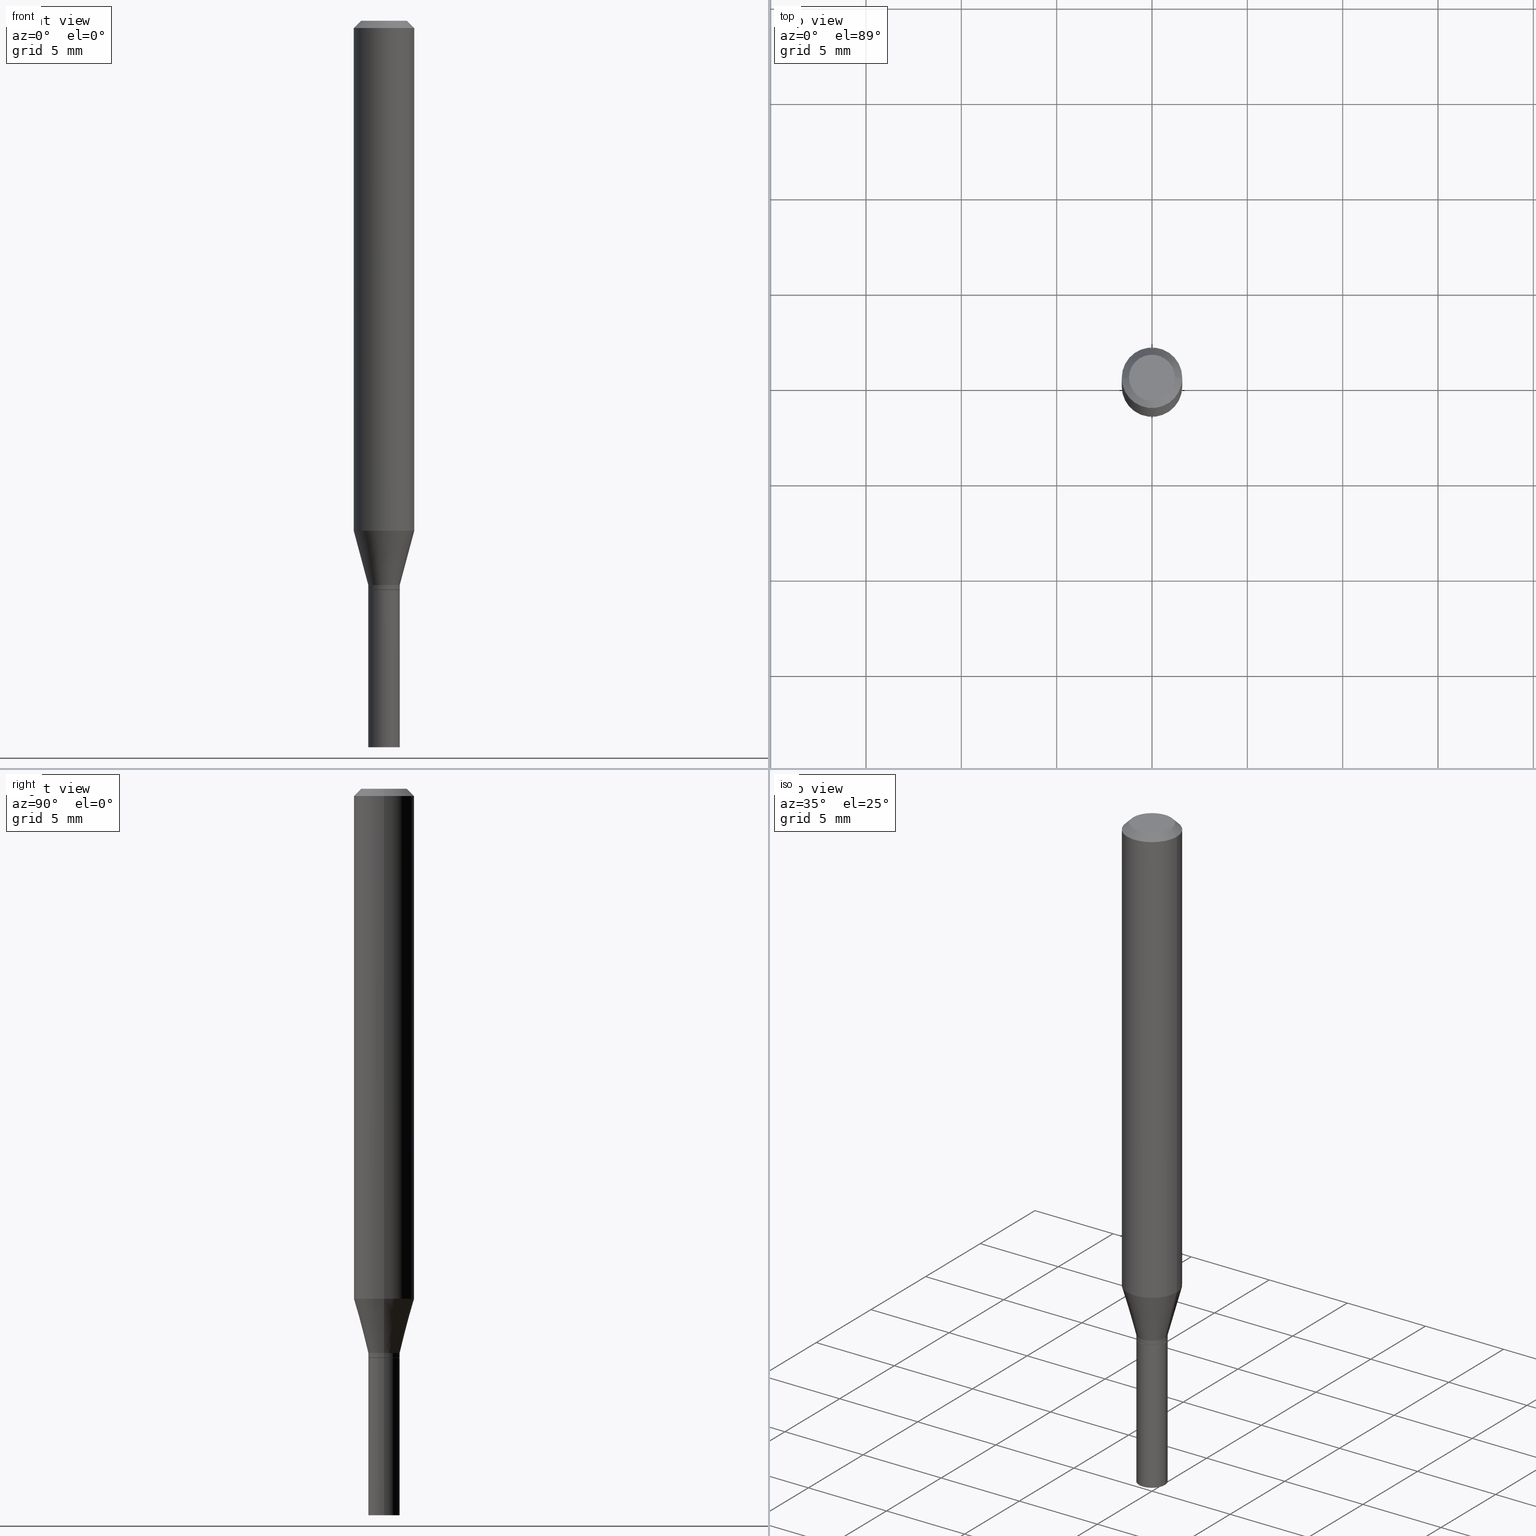
[diagram: canonical four-view strip — front | top / right | iso, engineering-drawing reading convention]
A machine part, canonical four-view strip (front | top / right | iso — engineering-drawing reading convention). The complete STEP part file that produces these views, byte-faithful:
ISO-10303-21;
HEADER;
FILE_DESCRIPTION (( 'STEP AP203' ),
    '1' );
FILE_NAME ('02654.STEP',
    '2024-03-18T21:07:15',
    ( '' ),
    ( '' ),
    'SwSTEP 2.0',
    'SolidWorks 2023',
    '' );
FILE_SCHEMA (( 'CONFIG_CONTROL_DESIGN' ));
ENDSEC;

DATA;
#1 = PERSON ( 'UNSPECIFIED', 'UNSPECIFIED', 'UNSPECIFIED', ('UNSPECIFIED'), ('UNSPECIFIED'), ('UNSPECIFIED') ) ;
#2 = DIRECTION ( 'NONE',  ( -2.445468806185136597E-29, 3.491481338843145583E-15, 1.000000000000000000 ) ) ;
#3 = ORIENTED_EDGE ( 'NONE', *, *, #357, .F. ) ;
#4 = DIRECTION ( 'NONE',  ( 0.000000000000000000, 0.000000000000000000, 1.000000000000000000 ) ) ;
#5 = AXIS2_PLACEMENT_3D ( 'NONE', #285, #216, #103 ) ;
#6 = AXIS2_PLACEMENT_3D ( 'NONE', #327, #465, #421 ) ;
#7 = ORIENTED_EDGE ( 'NONE', *, *, #114, .T. ) ;
#8 = MECHANICAL_CONTEXT ( 'NONE', #349, 'mechanical' ) ;
#9 = DIRECTION ( 'NONE',  ( -2.445468806185136597E-29, 3.491481338843145583E-15, 1.000000000000000000 ) ) ;
#10 = ORIENTED_EDGE ( 'NONE', *, *, #178, .F. ) ;
#11 = DATE_AND_TIME ( #18, #218 ) ;
#12 = AXIS2_PLACEMENT_3D ( 'NONE', #350, #271, #385 ) ;
#13 = DIRECTION ( 'NONE',  ( 1.000000000000000000, -6.982962677686266711E-15, 0.000000000000000000 ) ) ;
#14 = DESIGN_CONTEXT ( 'detailed design', #48, 'design' ) ;
#15 = DATE_AND_TIME ( #273, #427 ) ;
#16 = DIRECTION ( 'NONE',  ( 1.000000000000000000, -6.982962677686270655E-15, 0.000000000000000000 ) ) ;
#17 = ADVANCED_FACE ( 'NONE', ( #409 ), #440, .T. ) ;
#18 = CALENDAR_DATE ( 2024, 18, 3 ) ;
#19 = CARTESIAN_POINT ( 'NONE',  ( 3.576687321579069994E-29, -5.368277968210015545E-15, -1.500000000000000222 ) ) ;
#20 = CYLINDRICAL_SURFACE ( 'NONE', #62, 0.03250000000000000111 ) ;
#21 = VECTOR ( 'NONE', #30, 39.37007874015748854 ) ;
#22 = AXIS2_PLACEMENT_3D ( 'NONE', #232, #59, #197 ) ;
#23 = PLANE ( 'NONE',  #22 ) ;
#24 = DIRECTION ( 'NONE',  ( 1.000000000000000000, -6.982962677686265922E-15, 4.876176775795935232E-29 ) ) ;
#25 = FACE_OUTER_BOUND ( 'NONE', #407, .T. ) ;
#26 = EDGE_CURVE ( 'NONE', #140, #40, #233, .T. ) ;
#27 = CONICAL_SURFACE ( 'NONE', #333, 0.03200000000000000067, 0.7853981633972005882 ) ;
#28 = PLANE ( 'NONE',  #275 ) ;
#29 = ORIENTED_EDGE ( 'NONE', *, *, #454, .F. ) ;
#30 = DIRECTION ( 'NONE',  ( -0.7071067811865416886, 2.468850131082196713E-15, -0.7071067811865531239 ) ) ;
#31 = EDGE_CURVE ( 'NONE', #38, #183, #348, .T. ) ;
#32 = DIRECTION ( 'NONE',  ( 1.000000000000000000, -6.982962677686266711E-15, 4.876176775795935793E-29 ) ) ;
#33 = EDGE_LOOP ( 'NONE', ( #340, #401 ) ) ;
#34 = AXIS2_PLACEMENT_3D ( 'NONE', #150, #113, #264 ) ;
#35 = CARTESIAN_POINT ( 'NONE',  ( 0.03250000000000000111, -5.464168295289522318E-15, -1.500000000000000222 ) ) ;
#36 = ORIENTED_EDGE ( 'NONE', *, *, #357, .T. ) ;
#37 = CARTESIAN_POINT ( 'NONE',  ( -0.03250000000000000111, 2.309263891220325683E-16, -1.598653904332844407E-30 ) ) ;
#38 = VERTEX_POINT ( 'NONE', #107 ) ;
#39 = LINE ( 'NONE', #146, #128 ) ;
#40 = VERTEX_POINT ( 'NONE', #187 ) ;
#41 = EDGE_CURVE ( 'NONE', #399, #85, #452, .T. ) ;
#42 = CARTESIAN_POINT ( 'NONE',  ( 2.873425847267536398E-29, -4.102490573140697470E-15, -1.175000000000000266 ) ) ;
#43 = VECTOR ( 'NONE', #88, 39.37007874015748143 ) ;
#44 = APPROVAL_PERSON_ORGANIZATION ( #122, #375, #51 ) ;
#45 = ORIENTED_EDGE ( 'NONE', *, *, #230, .T. ) ;
#46 =( NAMED_UNIT ( * ) PLANE_ANGLE_UNIT ( ) SI_UNIT ( $, .RADIAN. ) );
#47 = EDGE_LOOP ( 'NONE', ( #79, #267, #292, #137 ) ) ;
#48 = APPLICATION_CONTEXT ( 'configuration controlled 3d designs of mechanical parts and assemblies' ) ;
#49 = EDGE_CURVE ( 'NONE', #179, #308, #289, .T. ) ;
#50 = ORIENTED_EDGE ( 'NONE', *, *, #111, .T. ) ;
#51 = APPROVAL_ROLE ( '' ) ;
#52 = CIRCLE ( 'NONE', #156, 0.03250000000000018846 ) ;
#53 = LINE ( 'NONE', #195, #406 ) ;
#54 = PRODUCT ( '02654', '02654', '', ( #8 ) ) ;
#55 = ORGANIZATION ( 'UNSPECIFIED', 'UNSPECIFIED', '' ) ;
#56 = COORDINATED_UNIVERSAL_TIME_OFFSET ( 5, 0, .BEHIND. ) ;
#57 = CARTESIAN_POINT ( 'NONE',  ( -0.03250000000000000111, -4.438929901580675847E-15, -1.175000000000000266 ) ) ;
#58 = CALENDAR_DATE ( 2024, 18, 3 ) ;
#59 = DIRECTION ( 'NONE',  ( -2.438088387897960049E-29, 3.491481338843145188E-15, 1.000000000000000000 ) ) ;
#60 = EDGE_CURVE ( 'NONE', #295, #221, #363, .T. ) ;
#61 = DIRECTION ( 'NONE',  ( 1.000000000000000000, -6.982962677686271444E-15, 0.000000000000000000 ) ) ;
#62 = AXIS2_PLACEMENT_3D ( 'NONE', #199, #161, #24 ) ;
#63 = DIRECTION ( 'NONE',  ( 1.000000000000000000, -6.982962677686265922E-15, 4.876176775795935793E-29 ) ) ;
#64 = DIRECTION ( 'NONE',  ( 2.445468806185136597E-29, -3.491481338843145583E-15, -1.000000000000000000 ) ) ;
#65 = EDGE_LOOP ( 'NONE', ( #438, #110, #261, #361 ) ) ;
#66 = DIRECTION ( 'NONE',  ( -1.000000000000000000, 6.982962677686266711E-15, 0.000000000000000000 ) ) ;
#67 = CC_DESIGN_DATE_AND_TIME_ASSIGNMENT ( #198, #343, ( #158 ) ) ;
#68 = ORIENTED_EDGE ( 'NONE', *, *, #284, .T. ) ;
#69 = CIRCLE ( 'NONE', #445, 0.06250000000000000000 ) ;
#70 = CC_DESIGN_APPROVAL ( #224, ( #209 ) ) ;
#71 = CYLINDRICAL_SURFACE ( 'NONE', #387, 0.06250000000000000000 ) ;
#72 = CARTESIAN_POINT ( 'NONE',  ( -0.06250000000000000000, -3.232574977394969361E-15, -1.053038475772934746 ) ) ;
#73 = ORIENTED_EDGE ( 'NONE', *, *, #454, .T. ) ;
#74 = CC_DESIGN_PERSON_AND_ORGANIZATION_ASSIGNMENT ( #237, #162, ( #158 ) ) ;
#75 = CARTESIAN_POINT ( 'NONE',  ( 2.575172744215455039E-29, -3.676664187245031977E-15, -1.053038475772934746 ) ) ;
#76 = AXIS2_PLACEMENT_3D ( 'NONE', #243, #288, #422 ) ;
#77 = CYLINDRICAL_SURFACE ( 'NONE', #453, 0.03250000000000005662 ) ;
#78 = DIRECTION ( 'NONE',  ( 1.000000000000000000, -6.982962677686261977E-15, 0.000000000000000000 ) ) ;
#79 = ORIENTED_EDGE ( 'NONE', *, *, #41, .T. ) ;
#80 = APPROVAL_STATUS ( 'not_yet_approved' ) ;
#81 = CARTESIAN_POINT ( 'NONE',  ( 3.668203209277705088E-31, -5.237222008264718399E-17, -0.01499999999999999944 ) ) ;
#82 = AXIS2_PLACEMENT_3D ( 'NONE', #92, #238, #123 ) ;
#83 = DIRECTION ( 'NONE',  ( 1.000000000000000000, -6.982962677686259611E-15, 0.000000000000000000 ) ) ;
#84 = APPROVAL_PERSON_ORGANIZATION ( #124, #224, #120 ) ;
#85 = VERTEX_POINT ( 'NONE', #239 ) ;
#86 = ORIENTED_EDGE ( 'NONE', *, *, #382, .T. ) ;
#87 = APPROVAL_STATUS ( 'not_yet_approved' ) ;
#88 = DIRECTION ( 'NONE',  ( -2.445468806185136877E-29, 3.491481338843145188E-15, 1.000000000000000000 ) ) ;
#89 = LINE ( 'NONE', #204, #305 ) ;
#90 = AXIS2_PLACEMENT_3D ( 'NONE', #42, #337, #226 ) ;
#91 = APPROVAL_DATE_TIME ( #234, #457 ) ;
#92 = CARTESIAN_POINT ( 'NONE',  ( 2.269462870248323432E-16, 0.03249999999999590022, -1.175000000000000266 ) ) ;
#93 = EDGE_CURVE ( 'NONE', #330, #248, #53, .T. ) ;
#94 = DIRECTION ( 'NONE',  ( 1.000000000000000000, -6.982962677686265922E-15, 4.876176775795935232E-29 ) ) ;
#95 = PLANE ( 'NONE',  #82 ) ;
#96 = CARTESIAN_POINT ( 'NONE',  ( 3.668203209277704895E-29, -5.237222008264718177E-15, -1.500000000000000222 ) ) ;
#97 = EDGE_CURVE ( 'NONE', #221, #152, #130, .T. ) ;
#98 = DIRECTION ( 'NONE',  ( 1.000000000000000000, -6.982962677686258033E-15, 0.000000000000000000 ) ) ;
#99 = FACE_OUTER_BOUND ( 'NONE', #65, .T. ) ;
#100 = ADVANCED_FACE ( 'NONE', ( #344 ), #372, .T. ) ;
#101 = ORIENTED_EDGE ( 'NONE', *, *, #212, .F. ) ;
#102 = AXIS2_PLACEMENT_3D ( 'NONE', #411, #163, #16 ) ;
#103 = DIRECTION ( 'NONE',  ( 1.000000000000000000, -6.982962677686261977E-15, 0.000000000000000000 ) ) ;
#104 = DIRECTION ( 'NONE',  ( -2.445468806185136597E-29, 3.491481338843145583E-15, 1.000000000000000000 ) ) ;
#105 = ORIENTED_EDGE ( 'NONE', *, *, #60, .T. ) ;
#106 = FACE_OUTER_BOUND ( 'NONE', #429, .T. ) ;
#107 = CARTESIAN_POINT ( 'NONE',  ( 0.06250000000000000000, -4.888073874380388472E-16, -0.01499999999999999944 ) ) ;
#108 = VECTOR ( 'NONE', #430, 39.37007874015748143 ) ;
#109 = CARTESIAN_POINT ( 'NONE',  ( 0.000000000000000000, 0.000000000000000000, 0.000000000000000000 ) ) ;
#110 = ORIENTED_EDGE ( 'NONE', *, *, #303, .T. ) ;
#111 = EDGE_CURVE ( 'NONE', #308, #183, #89, .T. ) ;
#112 = PERSON_AND_ORGANIZATION ( #1, #55 ) ;
#113 = DIRECTION ( 'NONE',  ( -2.445468806185136597E-29, 3.491481338843145583E-15, 1.000000000000000000 ) ) ;
#114 = EDGE_CURVE ( 'NONE', #374, #399, #169, .T. ) ;
#115 = VERTEX_POINT ( 'NONE', #57 ) ;
#116 = AXIS2_PLACEMENT_3D ( 'NONE', #283, #206, #324 ) ;
#117 = DIRECTION ( 'NONE',  ( 0.2588190451025216277, 1.565188264969619995E-15, 0.9659258262890679791 ) ) ;
#118 = LOCAL_TIME ( 17, 7, 15.00000000000000000, #449 ) ;
#119 = ORIENTED_EDGE ( 'NONE', *, *, #268, .F. ) ;
#120 = APPROVAL_ROLE ( '' ) ;
#121 = DIRECTION ( 'NONE',  ( -2.445468806185136597E-29, 3.491481338843145583E-15, 1.000000000000000000 ) ) ;
#122 = PERSON_AND_ORGANIZATION ( #1, #55 ) ;
#123 = DIRECTION ( 'NONE',  ( -1.000000000000000000, 6.982962677686265922E-15, -4.876176775795935793E-29 ) ) ;
#124 = PERSON_AND_ORGANIZATION ( #1, #55 ) ;
#125 = CONICAL_SURFACE ( 'NONE', #5, 0.03250000000000018846, 0.2617993877991502960 ) ;
#126 = FACE_OUTER_BOUND ( 'NONE', #446, .T. ) ;
#127 = ADVANCED_FACE ( 'NONE', ( #279 ), #23, .F. ) ;
#128 = VECTOR ( 'NONE', #444, 39.37007874015748854 ) ;
#129 = CARTESIAN_POINT ( 'NONE',  ( 0.000000000000000000, 0.000000000000000000, 0.000000000000000000 ) ) ;
#130 = LINE ( 'NONE', #346, #225 ) ;
#131 = DIRECTION ( 'NONE',  ( 1.000000000000000000, -6.982962677686258033E-15, 0.000000000000000000 ) ) ;
#132 = CIRCLE ( 'NONE', #184, 0.03250000000000000111 ) ;
#133 = ADVANCED_FACE ( 'NONE', ( #280 ), #352, .T. ) ;
#134 = DIRECTION ( 'NONE',  ( 1.000000000000000000, -6.982962677686266711E-15, 0.000000000000000000 ) ) ;
#135 = ORIENTED_EDGE ( 'NONE', *, *, #382, .F. ) ;
#136 = DIRECTION ( 'NONE',  ( 1.000000000000000000, -6.982962677686267499E-15, 4.852736867747366768E-29 ) ) ;
#137 = ORIENTED_EDGE ( 'NONE', *, *, #439, .F. ) ;
#138 = ADVANCED_FACE ( 'NONE', ( #416 ), #347, .F. ) ;
#139 = FACE_OUTER_BOUND ( 'NONE', #33, .T. ) ;
#140 = VERTEX_POINT ( 'NONE', #311 ) ;
#141 = VECTOR ( 'NONE', #117, 39.37007874015748143 ) ;
#142 = CARTESIAN_POINT ( 'NONE',  ( 0.000000000000000000, 0.000000000000000000, 0.000000000000000000 ) ) ;
#143 = ORIENTED_EDGE ( 'NONE', *, *, #31, .T. ) ;
#144 = COORDINATED_UNIVERSAL_TIME_OFFSET ( 5, 0, .BEHIND. ) ;
#145 = ORIENTED_EDGE ( 'NONE', *, *, #97, .T. ) ;
#146 = CARTESIAN_POINT ( 'NONE',  ( 0.06250000000000000000, -4.811533449433679005E-16, -0.01499999999999999944 ) ) ;
#147 = EDGE_LOOP ( 'NONE', ( #254, #304, #256, #431 ) ) ;
#148 = APPROVAL_PERSON_ORGANIZATION ( #177, #457, #329 ) ;
#149 = DIRECTION ( 'NONE',  ( 1.000000000000000000, 0.000000000000000000, 0.000000000000000000 ) ) ;
#150 = CARTESIAN_POINT ( 'NONE',  ( -6.039856226162563845E-45, 8.623313963198305035E-31, 2.469815280770058928E-16 ) ) ;
#151 = FACE_OUTER_BOUND ( 'NONE', #356, .T. ) ;
#152 = VERTEX_POINT ( 'NONE', #451 ) ;
#153 = PRODUCT_RELATED_PRODUCT_CATEGORY ( 'detail', '', ( #54 ) ) ;
#154 = ORIENTED_EDGE ( 'NONE', *, *, #230, .F. ) ;
#155 = ADVANCED_FACE ( 'NONE', ( #126 ), #95, .F. ) ;
#156 = AXIS2_PLACEMENT_3D ( 'NONE', #353, #398, #323 ) ;
#157 = APPROVAL_STATUS ( 'not_yet_approved' ) ;
#158 = SECURITY_CLASSIFICATION ( '', '', #231 ) ;
#159 = ORIENTED_EDGE ( 'NONE', *, *, #351, .F. ) ;
#160 = SHAPE_DEFINITION_REPRESENTATION ( #203, #410 ) ;
#161 = DIRECTION ( 'NONE',  ( -2.445468806185136597E-29, 3.491481338843145583E-15, 1.000000000000000000 ) ) ;
#162 = PERSON_AND_ORGANIZATION_ROLE ( 'classification_officer' ) ;
#163 = DIRECTION ( 'NONE',  ( -2.445468806185136597E-29, 3.491481338843145583E-15, 1.000000000000000000 ) ) ;
#164 = ADVANCED_FACE ( 'NONE', ( #379 ), #20, .T. ) ;
#165 = VECTOR ( 'NONE', #317, 39.37007874015748143 ) ;
#166 = LINE ( 'NONE', #316, #414 ) ;
#167 = LOCAL_TIME ( 17, 7, 15.00000000000000000, #339 ) ;
#168 = EDGE_CURVE ( 'NONE', #295, #374, #166, .T. ) ;
#169 = LINE ( 'NONE', #236, #43 ) ;
#170 = CARTESIAN_POINT ( 'NONE',  ( 0.06250000000000000000, -4.113099354600423647E-15, -1.053038475772934746 ) ) ;
#171 = CARTESIAN_POINT ( 'NONE',  ( -0.06250000000000000000, 3.840629472727444916E-16, -0.01499999999999999944 ) ) ;
#172 = AXIS2_PLACEMENT_3D ( 'NONE', #75, #173, #213 ) ;
#173 = DIRECTION ( 'NONE',  ( -2.445468806185136597E-29, 3.491481338843145583E-15, 1.000000000000000000 ) ) ;
#174 = FACE_OUTER_BOUND ( 'NONE', #338, .T. ) ;
#175 = ORIENTED_EDGE ( 'NONE', *, *, #168, .T. ) ;
#176 = LINE ( 'NONE', #244, #108 ) ;
#177 = PERSON_AND_ORGANIZATION ( #1, #55 ) ;
#178 = EDGE_CURVE ( 'NONE', #85, #308, #386, .T. ) ;
#179 = VERTEX_POINT ( 'NONE', #170 ) ;
#180 = DIRECTION ( 'NONE',  ( -2.445468806185136597E-29, 3.491481338843145583E-15, 1.000000000000000000 ) ) ;
#181 = ORIENTED_EDGE ( 'NONE', *, *, #114, .F. ) ;
#182 = EDGE_CURVE ( 'NONE', #152, #85, #383, .T. ) ;
#183 = VERTEX_POINT ( 'NONE', #456 ) ;
#184 = AXIS2_PLACEMENT_3D ( 'NONE', #96, #205, #98 ) ;
#185 = CIRCLE ( 'NONE', #282, 0.03249999999999992478 ) ;
#186 = DIRECTION ( 'NONE',  ( 1.000000000000000000, -6.982962677686265922E-15, 4.876176775795935232E-29 ) ) ;
#187 = CARTESIAN_POINT ( 'NONE',  ( 0.04749999999999999362, -4.035134999187574186E-16, 2.469815280770084566E-16 ) ) ;
#188 = CC_DESIGN_PERSON_AND_ORGANIZATION_ASSIGNMENT ( #378, #190, ( #209 ) ) ;
#189 = ORIENTED_EDGE ( 'NONE', *, *, #303, .F. ) ;
#190 = PERSON_AND_ORGANIZATION_ROLE ( 'creator' ) ;
#191 = EDGE_LOOP ( 'NONE', ( #290, #73, #211, #208 ) ) ;
#192 = APPROVAL_DATE_TIME ( #15, #375 ) ;
#193 = AXIS2_PLACEMENT_3D ( 'NONE', #255, #294, #441 ) ;
#194 = ADVANCED_FACE ( 'NONE', ( #413 ), #436, .T. ) ;
#195 = CARTESIAN_POINT ( 'NONE',  ( 0.03250000000000000111, -2.269462870248036484E-16, 1.584757452133678993E-30 ) ) ;
#196 = DATE_TIME_ROLE ( 'creation_date' ) ;
#197 = DIRECTION ( 'NONE',  ( 1.000000000000000000, -6.982962677686265922E-15, 4.876176775795935793E-29 ) ) ;
#198 = DATE_AND_TIME ( #58, #118 ) ;
#199 = CARTESIAN_POINT ( 'NONE',  ( 0.000000000000000000, 0.000000000000000000, 0.000000000000000000 ) ) ;
#200 = ADVANCED_FACE ( 'NONE', ( #99 ), #458, .T. ) ;
#201 = AXIS2_PLACEMENT_3D ( 'NONE', #19, #448, #63 ) ;
#202 = DIRECTION ( 'NONE',  ( -2.445468806185136597E-29, 3.491481338843145583E-15, 1.000000000000000000 ) ) ;
#203 = PRODUCT_DEFINITION_SHAPE ( 'NONE', 'NONE',  #408 ) ;
#204 = CARTESIAN_POINT ( 'NONE',  ( -0.06250000000000000000, 4.440892098500626162E-16, -3.074334431409316114E-30 ) ) ;
#205 = DIRECTION ( 'NONE',  ( -2.445468806185136597E-29, 3.491481338843145583E-15, 1.000000000000000000 ) ) ;
#206 = DIRECTION ( 'NONE',  ( -2.445468806185136597E-29, 3.491481338843145583E-15, 1.000000000000000000 ) ) ;
#207 = AXIS2_PLACEMENT_3D ( 'NONE', #246, #391, #32 ) ;
#208 = ORIENTED_EDGE ( 'NONE', *, *, #93, .F. ) ;
#209 = PRODUCT_DEFINITION_FORMATION_WITH_SPECIFIED_SOURCE ( 'ANY', '', #54, .NOT_KNOWN. ) ;
#210 = DIRECTION ( 'NONE',  ( -2.445468806185136597E-29, 3.491481338843145583E-15, 1.000000000000000000 ) ) ;
#211 = ORIENTED_EDGE ( 'NONE', *, *, #215, .F. ) ;
#212 = EDGE_CURVE ( 'NONE', #85, #399, #52, .T. ) ;
#213 = DIRECTION ( 'NONE',  ( 1.000000000000000000, -6.982962677686270655E-15, 0.000000000000000000 ) ) ;
#214 = ORIENTED_EDGE ( 'NONE', *, *, #442, .T. ) ;
#215 = EDGE_CURVE ( 'NONE', #248, #115, #419, .T. ) ;
#216 = DIRECTION ( 'NONE',  ( -2.445468806185136597E-29, 3.491481338843145583E-15, 1.000000000000000000 ) ) ;
#217 = ORIENTED_EDGE ( 'NONE', *, *, #93, .T. ) ;
#218 = LOCAL_TIME ( 17, 7, 15.00000000000000000, #56 ) ;
#219 = LINE ( 'NONE', #466, #141 ) ;
#220 = ORIENTED_EDGE ( 'NONE', *, *, #284, .F. ) ;
#221 = VERTEX_POINT ( 'NONE', #395 ) ;
#222 = LENGTH_MEASURE_WITH_UNIT ( LENGTH_MEASURE( 0.02539999999999999897 ), #260 );
#223 = DIRECTION ( 'NONE',  ( -2.445468806185136597E-29, 3.491481338843145583E-15, 1.000000000000000000 ) ) ;
#224 = APPROVAL ( #87, 'UNSPECIFIED' ) ;
#225 = VECTOR ( 'NONE', #450, 39.37007874015748143 ) ;
#226 = DIRECTION ( 'NONE',  ( 1.000000000000000000, -6.982962677686271444E-15, 0.000000000000000000 ) ) ;
#227 = EDGE_LOOP ( 'NONE', ( #29, #68, #217, #135 ) ) ;
#228 = CARTESIAN_POINT ( 'NONE',  ( 0.000000000000000000, 0.000000000000000000, 0.000000000000000000 ) ) ;
#229 = CARTESIAN_POINT ( 'NONE',  ( 0.000000000000000000, 0.000000000000000000, 0.000000000000000000 ) ) ;
#230 = EDGE_CURVE ( 'NONE', #152, #374, #341, .T. ) ;
#231 = SECURITY_CLASSIFICATION_LEVEL ( 'unclassified' ) ;
#232 = CARTESIAN_POINT ( 'NONE',  ( 2.873425847267535838E-29, -4.102490573140696681E-15, -1.175000000000000266 ) ) ;
#233 = CIRCLE ( 'NONE', #34, 0.04749999999999999362 ) ;
#234 = DATE_AND_TIME ( #381, #235 ) ;
#235 = LOCAL_TIME ( 17, 7, 15.00000000000000000, #144 ) ;
#236 = CARTESIAN_POINT ( 'NONE',  ( 0.03250000000000005662, -2.269462870248040428E-16, 1.584757452133681795E-30 ) ) ;
#237 = PERSON_AND_ORGANIZATION ( #1, #55 ) ;
#238 = DIRECTION ( 'NONE',  ( 2.438088387897960049E-29, -3.491481338843145188E-15, -1.000000000000000000 ) ) ;
#239 = CARTESIAN_POINT ( 'NONE',  ( -0.03250000000000018846, -3.534612174012599828E-15, -1.165000000000000036 ) ) ;
#240 = CC_DESIGN_PERSON_AND_ORGANIZATION_ASSIGNMENT ( #345, #384, ( #209 ) ) ;
#241 = AXIS2_PLACEMENT_3D ( 'NONE', #229, #377, #331 ) ;
#242 = DIRECTION ( 'NONE',  ( -2.445468806185136877E-29, 3.491481338843145188E-15, 1.000000000000000000 ) ) ;
#243 = CARTESIAN_POINT ( 'NONE',  ( 2.873425847267535838E-29, -4.102490573140696681E-15, -1.175000000000000266 ) ) ;
#244 = CARTESIAN_POINT ( 'NONE',  ( 0.06250000000000000000, -4.364351673553916694E-16, 3.047610484872459871E-30 ) ) ;
#245 = ORIENTED_EDGE ( 'NONE', *, *, #49, .T. ) ;
#246 = CARTESIAN_POINT ( 'NONE',  ( 0.000000000000000000, 0.000000000000000000, 0.000000000000000000 ) ) ;
#247 = CIRCLE ( 'NONE', #313, 0.04749999999999999362 ) ;
#248 = VERTEX_POINT ( 'NONE', #250 ) ;
#249 = CC_DESIGN_APPROVAL ( #457, ( #408 ) ) ;
#250 = CARTESIAN_POINT ( 'NONE',  ( 0.03250000000000000111, -4.329436860165500822E-15, -1.175000000000000266 ) ) ;
#251 = EDGE_LOOP ( 'NONE', ( #159, #220 ) ) ;
#252 = ADVANCED_FACE ( 'NONE', ( #139 ), #28, .F. ) ;
#253 = DIRECTION ( 'NONE',  ( -2.445468806185136597E-29, 3.491481338843145583E-15, 1.000000000000000000 ) ) ;
#254 = ORIENTED_EDGE ( 'NONE', *, *, #432, .F. ) ;
#255 = CARTESIAN_POINT ( 'NONE',  ( 2.873425847267535838E-29, -4.102490573140696681E-15, -1.175000000000000266 ) ) ;
#256 = ORIENTED_EDGE ( 'NONE', *, *, #268, .T. ) ;
#257 = AXIS2_PLACEMENT_3D ( 'NONE', #129, #202, #94 ) ;
#258 = UNCERTAINTY_MEASURE_WITH_UNIT (LENGTH_MEASURE( 1.000000000000000082E-05 ), #265, 'distance_accuracy_value', 'NONE');
#259 = ADVANCED_FACE ( 'NONE', ( #25 ), #125, .T. ) ;
#260 =( LENGTH_UNIT ( ) NAMED_UNIT ( * ) SI_UNIT ( $, .METRE. ) );
#261 = ORIENTED_EDGE ( 'NONE', *, *, #293, .T. ) ;
#262 = PERSON_AND_ORGANIZATION_ROLE ( 'design_owner' ) ;
#263 = CC_DESIGN_PERSON_AND_ORGANIZATION_ASSIGNMENT ( #307, #447, ( #408 ) ) ;
#264 = DIRECTION ( 'NONE',  ( 1.000000000000000000, -6.982962677686267499E-15, 4.852736867747366768E-29 ) ) ;
#265 =( CONVERSION_BASED_UNIT ( 'INCH', #222 ) LENGTH_UNIT ( ) NAMED_UNIT ( #270 ) );
#266 = ORIENTED_EDGE ( 'NONE', *, *, #168, .F. ) ;
#267 = ORIENTED_EDGE ( 'NONE', *, *, #178, .T. ) ;
#268 = EDGE_CURVE ( 'NONE', #140, #183, #355, .T. ) ;
#269 = COORDINATED_UNIVERSAL_TIME_OFFSET ( 5, 0, .BEHIND. ) ;
#270 = DIMENSIONAL_EXPONENTS ( 1.000000000000000000, 0.000000000000000000, 0.000000000000000000, 0.000000000000000000, 0.000000000000000000, 0.000000000000000000, 0.000000000000000000 ) ;
#271 = DIRECTION ( 'NONE',  ( -2.445468806185136597E-29, 3.491481338843145583E-15, 1.000000000000000000 ) ) ;
#272 = ADVANCED_FACE ( 'NONE', ( #174 ), #393, .T. ) ;
#273 = CALENDAR_DATE ( 2024, 18, 3 ) ;
#274 = CARTESIAN_POINT ( 'NONE',  ( -0.03250000000000005662, 2.309263891220329627E-16, -1.598653904332847210E-30 ) ) ;
#275 = AXIS2_PLACEMENT_3D ( 'NONE', #362, #428, #389 ) ;
#276 = DATE_AND_TIME ( #309, #167 ) ;
#277 = CIRCLE ( 'NONE', #394, 0.03250000000000000111 ) ;
#278 = EDGE_CURVE ( 'NONE', #183, #38, #69, .T. ) ;
#279 = FACE_OUTER_BOUND ( 'NONE', #403, .T. ) ;
#280 = FACE_OUTER_BOUND ( 'NONE', #365, .T. ) ;
#281 = DIRECTION ( 'NONE',  ( -0.2588190451025216277, 5.211531920934551831E-15, 0.9659258262890679791 ) ) ;
#282 = AXIS2_PLACEMENT_3D ( 'NONE', #296, #364, #83 ) ;
#283 = CARTESIAN_POINT ( 'NONE',  ( 2.872203112864443036E-29, -4.100744832471275177E-15, -1.174500000000000099 ) ) ;
#284 = EDGE_CURVE ( 'NONE', #396, #330, #132, .T. ) ;
#285 = CARTESIAN_POINT ( 'NONE',  ( 2.848971159205684292E-29, -4.067575759752264243E-15, -1.165000000000000036 ) ) ;
#286 = FACE_OUTER_BOUND ( 'NONE', #443, .T. ) ;
#287 = ORIENTED_EDGE ( 'NONE', *, *, #182, .T. ) ;
#288 = DIRECTION ( 'NONE',  ( -2.445468806185136597E-29, 3.491481338843145583E-15, 1.000000000000000000 ) ) ;
#289 = CIRCLE ( 'NONE', #102, 0.06250000000000000000 ) ;
#290 = ORIENTED_EDGE ( 'NONE', *, *, #351, .T. ) ;
#291 = CARTESIAN_POINT ( 'NONE',  ( 3.668203209277704895E-29, -5.237222008264718177E-15, -1.500000000000000222 ) ) ;
#292 = ORIENTED_EDGE ( 'NONE', *, *, #49, .F. ) ;
#293 = EDGE_CURVE ( 'NONE', #179, #38, #176, .T. ) ;
#294 = DIRECTION ( 'NONE',  ( -2.445468806185136597E-29, 3.491481338843145583E-15, 1.000000000000000000 ) ) ;
#295 = VERTEX_POINT ( 'NONE', #397 ) ;
#296 = CARTESIAN_POINT ( 'NONE',  ( 2.872203112864443036E-29, -4.100744832471275177E-15, -1.174500000000000099 ) ) ;
#297 = ORIENTED_EDGE ( 'NONE', *, *, #442, .F. ) ;
#298 = AXIS2_PLACEMENT_3D ( 'NONE', #336, #9, #78 ) ;
#299 = ORIENTED_EDGE ( 'NONE', *, *, #432, .T. ) ;
#300 = DIRECTION ( 'NONE',  ( -2.445468806185136877E-29, 3.491481338843145188E-15, 1.000000000000000000 ) ) ;
#301 = ORIENTED_EDGE ( 'NONE', *, *, #182, .F. ) ;
#302 = CARTESIAN_POINT ( 'NONE',  ( 2.873425847267536398E-29, -4.102490573140697470E-15, -1.175000000000000266 ) ) ;
#303 = EDGE_CURVE ( 'NONE', #308, #179, #380, .T. ) ;
#304 = ORIENTED_EDGE ( 'NONE', *, *, #26, .F. ) ;
#305 = VECTOR ( 'NONE', #388, 39.37007874015748143 ) ;
#306 = CIRCLE ( 'NONE', #193, 0.03250000000000000111 ) ;
#307 = PERSON_AND_ORGANIZATION ( #1, #55 ) ;
#308 = VERTEX_POINT ( 'NONE', #72 ) ;
#309 = CALENDAR_DATE ( 2024, 18, 3 ) ;
#310 = DIRECTION ( 'NONE',  ( 0.7071067811863723795, -2.468850131080422170E-15, 0.7071067811867226549 ) ) ;
#311 = CARTESIAN_POINT ( 'NONE',  ( -0.04749999999999999362, 3.578768372314215436E-16, 2.469815280770034769E-16 ) ) ;
#312 = CLOSED_SHELL ( 'NONE', ( #133, #402, #272, #334, #100, #259, #200, #194, #252, #127, #326, #412 ) ) ;
#313 = AXIS2_PLACEMENT_3D ( 'NONE', #462, #104, #136 ) ;
#314 = CC_DESIGN_DATE_AND_TIME_ASSIGNMENT ( #11, #196, ( #408 ) ) ;
#315 = CONICAL_SURFACE ( 'NONE', #6, 0.03200000000000000067, 0.7853981633972005882 ) ;
#316 = CARTESIAN_POINT ( 'NONE',  ( 0.03200000000000000067, -4.325945378826657815E-15, -1.175000000000000266 ) ) ;
#317 = DIRECTION ( 'NONE',  ( -2.445468806185136877E-29, 3.491481338843145188E-15, 1.000000000000000000 ) ) ;
#318 = DIRECTION ( 'NONE',  ( 1.000000000000000000, -6.982962677686266711E-15, 4.876176775795935793E-29 ) ) ;
#319 = EDGE_CURVE ( 'NONE', #40, #140, #247, .T. ) ;
#320 = CC_DESIGN_SECURITY_CLASSIFICATION ( #158, ( #209 ) ) ;
#321 = CARTESIAN_POINT ( 'NONE',  ( 3.668203209277705088E-31, -5.237222008264718399E-17, -0.01499999999999999944 ) ) ;
#322 = CC_DESIGN_PERSON_AND_ORGANIZATION_ASSIGNMENT ( #112, #262, ( #54 ) ) ;
#323 = DIRECTION ( 'NONE',  ( 1.000000000000000000, -6.982962677686261977E-15, 0.000000000000000000 ) ) ;
#324 = DIRECTION ( 'NONE',  ( 1.000000000000000000, -6.982962677686259611E-15, 0.000000000000000000 ) ) ;
#325 = ORIENTED_EDGE ( 'NONE', *, *, #97, .F. ) ;
#326 = ADVANCED_FACE ( 'NONE', ( #286 ), #315, .T. ) ;
#327 = CARTESIAN_POINT ( 'NONE',  ( 2.873425847267536398E-29, -4.102490573140697470E-15, -1.175000000000000266 ) ) ;
#328 = AXIS2_PLACEMENT_3D ( 'NONE', #418, #358, #66 ) ;
#329 = APPROVAL_ROLE ( '' ) ;
#330 = VERTEX_POINT ( 'NONE', #35 ) ;
#331 = DIRECTION ( 'NONE',  ( 1.000000000000000000, -6.982962677686265922E-15, 4.876176775795935232E-29 ) ) ;
#332 = AXIS2_PLACEMENT_3D ( 'NONE', #81, #223, #13 ) ;
#333 = AXIS2_PLACEMENT_3D ( 'NONE', #302, #2, #376 ) ;
#334 = ADVANCED_FACE ( 'NONE', ( #424 ), #71, .T. ) ;
#335 = APPLICATION_PROTOCOL_DEFINITION ( 'international standard', 'config_control_design', 1994, #349 ) ;
#336 = CARTESIAN_POINT ( 'NONE',  ( 2.848971159205684292E-29, -4.067575759752264243E-15, -1.165000000000000036 ) ) ;
#337 = DIRECTION ( 'NONE',  ( -2.445468806185136597E-29, 3.491481338843145583E-15, 1.000000000000000000 ) ) ;
#338 = EDGE_LOOP ( 'NONE', ( #368, #299, #143, #119 ) ) ;
#339 = COORDINATED_UNIVERSAL_TIME_OFFSET ( 5, 0, .BEHIND. ) ;
#340 = ORIENTED_EDGE ( 'NONE', *, *, #26, .T. ) ;
#341 = CIRCLE ( 'NONE', #116, 0.03249999999999992478 ) ;
#342 = CC_DESIGN_APPROVAL ( #375, ( #158 ) ) ;
#343 = DATE_TIME_ROLE ( 'classification_date' ) ;
#344 = FACE_OUTER_BOUND ( 'NONE', #47, .T. ) ;
#345 = PERSON_AND_ORGANIZATION ( #1, #55 ) ;
#346 = CARTESIAN_POINT ( 'NONE',  ( -0.03200000000000000067, -3.875116897697465208E-15, -1.175000000000000266 ) ) ;
#347 = PLANE ( 'NONE',  #201 ) ;
#348 = CIRCLE ( 'NONE', #332, 0.06250000000000000000 ) ;
#349 = APPLICATION_CONTEXT ( 'configuration controlled 3d designs of mechanical parts and assemblies' ) ;
#350 = CARTESIAN_POINT ( 'NONE',  ( 2.848971159205684292E-29, -4.067575759752264243E-15, -1.165000000000000036 ) ) ;
#351 = EDGE_CURVE ( 'NONE', #330, #396, #277, .T. ) ;
#352 = CYLINDRICAL_SURFACE ( 'NONE', #257, 0.03250000000000005662 ) ;
#353 = CARTESIAN_POINT ( 'NONE',  ( 2.848971159205684292E-29, -4.067575759752264243E-15, -1.165000000000000036 ) ) ;
#354 = VECTOR ( 'NONE', #281, 39.37007874015748143 ) ;
#355 = LINE ( 'NONE', #171, #21 ) ;
#356 = EDGE_LOOP ( 'NONE', ( #105, #145, #297, #266 ) ) ;
#357 = EDGE_CURVE ( 'NONE', #221, #295, #437, .T. ) ;
#358 = DIRECTION ( 'NONE',  ( 2.445468806185136597E-29, -3.491481338843145583E-15, -1.000000000000000000 ) ) ;
#359 = ORIENTED_EDGE ( 'NONE', *, *, #212, .T. ) ;
#360 = CARTESIAN_POINT ( 'NONE',  ( 3.668203209277705088E-31, -5.237222008264718399E-17, -0.01499999999999999944 ) ) ;
#361 = ORIENTED_EDGE ( 'NONE', *, *, #278, .F. ) ;
#362 = CARTESIAN_POINT ( 'NONE',  ( 3.316907271900976096E-16, 0.04749999999999999362, -4.235459955654645622E-17 ) ) ;
#363 = CIRCLE ( 'NONE', #464, 0.03200000000000000067 ) ;
#364 = DIRECTION ( 'NONE',  ( -2.445468806185136597E-29, 3.491481338843145583E-15, 1.000000000000000000 ) ) ;
#365 = EDGE_LOOP ( 'NONE', ( #214, #287, #392, #181 ) ) ;
#366 = CARTESIAN_POINT ( 'NONE',  ( 0.03249999999999992478, -4.327691119496078530E-15, -1.174500000000000099 ) ) ;
#367 = MANIFOLD_SOLID_BREP ( 'Body-Move/Copy2[2]', #312 ) ;
#368 = ORIENTED_EDGE ( 'NONE', *, *, #319, .F. ) ;
#369 = MANIFOLD_SOLID_BREP ( 'Body-Move/Copy2[1]', #459 ) ;
#370 =( NAMED_UNIT ( * ) SI_UNIT ( $, .STERADIAN. ) SOLID_ANGLE_UNIT ( ) );
#371 = EDGE_LOOP ( 'NONE', ( #245, #50, #425, #405 ) ) ;
#372 = CONICAL_SURFACE ( 'NONE', #12, 0.03250000000000018846, 0.2617993877991502960 ) ;
#373 = AXIS2_PLACEMENT_3D ( 'NONE', #228, #4, #149 ) ;
#374 = VERTEX_POINT ( 'NONE', #366 ) ;
#375 = APPROVAL ( #157, 'UNSPECIFIED' ) ;
#376 = DIRECTION ( 'NONE',  ( 1.000000000000000000, -6.982962677686271444E-15, 0.000000000000000000 ) ) ;
#377 = DIRECTION ( 'NONE',  ( -2.445468806185136597E-29, 3.491481338843145583E-15, 1.000000000000000000 ) ) ;
#378 = PERSON_AND_ORGANIZATION ( #1, #55 ) ;
#379 = FACE_OUTER_BOUND ( 'NONE', #227, .T. ) ;
#380 = CIRCLE ( 'NONE', #172, 0.06250000000000000000 ) ;
#381 = CALENDAR_DATE ( 2024, 18, 3 ) ;
#382 = EDGE_CURVE ( 'NONE', #115, #248, #306, .T. ) ;
#383 = LINE ( 'NONE', #274, #165 ) ;
#384 = PERSON_AND_ORGANIZATION_ROLE ( 'design_supplier' ) ;
#385 = DIRECTION ( 'NONE',  ( 1.000000000000000000, -6.982962677686261977E-15, 0.000000000000000000 ) ) ;
#386 = LINE ( 'NONE', #455, #354 ) ;
#387 = AXIS2_PLACEMENT_3D ( 'NONE', #142, #210, #318 ) ;
#388 = DIRECTION ( 'NONE',  ( -2.445468806185136877E-29, 3.491481338843145188E-15, 1.000000000000000000 ) ) ;
#389 = DIRECTION ( 'NONE',  ( -1.000000000000000000, 6.982962677686265922E-15, -4.876176775795935793E-29 ) ) ;
#390 = ORIENTED_EDGE ( 'NONE', *, *, #439, .T. ) ;
#391 = DIRECTION ( 'NONE',  ( -2.445468806185136597E-29, 3.491481338843145583E-15, 1.000000000000000000 ) ) ;
#392 = ORIENTED_EDGE ( 'NONE', *, *, #41, .F. ) ;
#393 = CONICAL_SURFACE ( 'NONE', #426, 0.06250000000000000000, 0.7853981633974401744 ) ;
#394 = AXIS2_PLACEMENT_3D ( 'NONE', #291, #253, #131 ) ;
#395 = CARTESIAN_POINT ( 'NONE',  ( -0.03200000000000000067, -3.872467670523354007E-15, -1.175000000000000266 ) ) ;
#396 = VERTEX_POINT ( 'NONE', #433 ) ;
#397 = CARTESIAN_POINT ( 'NONE',  ( 0.03200000000000000067, -4.325945378826657815E-15, -1.175000000000000266 ) ) ;
#398 = DIRECTION ( 'NONE',  ( -2.445468806185136597E-29, 3.491481338843145583E-15, 1.000000000000000000 ) ) ;
#399 = VERTEX_POINT ( 'NONE', #400 ) ;
#400 = CARTESIAN_POINT ( 'NONE',  ( 0.03250000000000018846, -4.294522046777069173E-15, -1.165000000000000036 ) ) ;
#401 = ORIENTED_EDGE ( 'NONE', *, *, #319, .T. ) ;
#402 = ADVANCED_FACE ( 'NONE', ( #151 ), #27, .T. ) ;
#403 = EDGE_LOOP ( 'NONE', ( #423, #3 ) ) ;
#404 = APPLICATION_PROTOCOL_DEFINITION ( 'international standard', 'config_control_design', 1994, #48 ) ;
#405 = ORIENTED_EDGE ( 'NONE', *, *, #293, .F. ) ;
#406 = VECTOR ( 'NONE', #242, 39.37007874015748143 ) ;
#407 = EDGE_LOOP ( 'NONE', ( #10, #359, #390, #189 ) ) ;
#408 = PRODUCT_DEFINITION ( 'UNKNOWN', '', #209, #14 ) ;
#409 = FACE_OUTER_BOUND ( 'NONE', #191, .T. ) ;
#410 = ADVANCED_BREP_SHAPE_REPRESENTATION ( '02654', ( #369, #367, #373 ), #460 ) ;
#411 = CARTESIAN_POINT ( 'NONE',  ( 2.575172744215455039E-29, -3.676664187245031977E-15, -1.053038475772934746 ) ) ;
#412 = ADVANCED_FACE ( 'NONE', ( #106 ), #77, .T. ) ;
#413 = FACE_OUTER_BOUND ( 'NONE', #147, .T. ) ;
#414 = VECTOR ( 'NONE', #310, 39.37007874015748143 ) ;
#415 = APPROVAL_DATE_TIME ( #276, #224 ) ;
#416 = FACE_OUTER_BOUND ( 'NONE', #251, .T. ) ;
#417 = CARTESIAN_POINT ( 'NONE',  ( 2.873425847267536398E-29, -4.102490573140697470E-15, -1.175000000000000266 ) ) ;
#418 = CARTESIAN_POINT ( 'NONE',  ( 3.668203209277705088E-31, -5.237222008264718399E-17, -0.01499999999999999944 ) ) ;
#419 = CIRCLE ( 'NONE', #76, 0.03250000000000000111 ) ;
#420 = VECTOR ( 'NONE', #300, 39.37007874015748143 ) ;
#421 = DIRECTION ( 'NONE',  ( 1.000000000000000000, -6.982962677686271444E-15, 0.000000000000000000 ) ) ;
#422 = DIRECTION ( 'NONE',  ( 1.000000000000000000, -6.982962677686273810E-15, 0.000000000000000000 ) ) ;
#423 = ORIENTED_EDGE ( 'NONE', *, *, #60, .F. ) ;
#424 = FACE_OUTER_BOUND ( 'NONE', #371, .T. ) ;
#425 = ORIENTED_EDGE ( 'NONE', *, *, #31, .F. ) ;
#426 = AXIS2_PLACEMENT_3D ( 'NONE', #360, #64, #463 ) ;
#427 = LOCAL_TIME ( 17, 7, 15.00000000000000000, #269 ) ;
#428 = DIRECTION ( 'NONE',  ( 2.438088387897960049E-29, -3.491481338843145188E-15, -1.000000000000000000 ) ) ;
#429 = EDGE_LOOP ( 'NONE', ( #301, #45, #7, #101 ) ) ;
#430 = DIRECTION ( 'NONE',  ( -2.445468806185136877E-29, 3.491481338843145188E-15, 1.000000000000000000 ) ) ;
#431 = ORIENTED_EDGE ( 'NONE', *, *, #278, .T. ) ;
#432 = EDGE_CURVE ( 'NONE', #40, #38, #39, .T. ) ;
#433 = CARTESIAN_POINT ( 'NONE',  ( -0.03250000000000000111, -4.438929901580675847E-15, -1.500000000000000222 ) ) ;
#434 = ORIENTED_EDGE ( 'NONE', *, *, #215, .T. ) ;
#435 = LINE ( 'NONE', #37, #420 ) ;
#436 = CONICAL_SURFACE ( 'NONE', #328, 0.06250000000000000000, 0.7853981633974401744 ) ;
#437 = CIRCLE ( 'NONE', #90, 0.03200000000000000067 ) ;
#438 = ORIENTED_EDGE ( 'NONE', *, *, #111, .F. ) ;
#439 = EDGE_CURVE ( 'NONE', #399, #179, #219, .T. ) ;
#440 = CYLINDRICAL_SURFACE ( 'NONE', #241, 0.03250000000000000111 ) ;
#441 = DIRECTION ( 'NONE',  ( 1.000000000000000000, -6.982962677686273810E-15, 0.000000000000000000 ) ) ;
#442 = EDGE_CURVE ( 'NONE', #374, #152, #185, .T. ) ;
#443 = EDGE_LOOP ( 'NONE', ( #325, #36, #175, #154 ) ) ;
#444 = DIRECTION ( 'NONE',  ( 0.7071067811865416886, -7.319954787623233957E-15, -0.7071067811865531239 ) ) ;
#445 = AXIS2_PLACEMENT_3D ( 'NONE', #321, #461, #134 ) ;
#446 = EDGE_LOOP ( 'NONE', ( #434, #86 ) ) ;
#447 = PERSON_AND_ORGANIZATION_ROLE ( 'creator' ) ;
#448 = DIRECTION ( 'NONE',  ( -2.438088387897960049E-29, 3.491481338843145188E-15, 1.000000000000000000 ) ) ;
#449 = COORDINATED_UNIVERSAL_TIME_OFFSET ( 5, 0, .BEHIND. ) ;
#450 = DIRECTION ( 'NONE',  ( -0.7071067811863723795, 7.493145998869721494E-15, 0.7071067811867226549 ) ) ;
#451 = CARTESIAN_POINT ( 'NONE',  ( -0.03249999999999992478, -3.869818443349242806E-15, -1.174500000000000099 ) ) ;
#452 = CIRCLE ( 'NONE', #298, 0.03250000000000018846 ) ;
#453 = AXIS2_PLACEMENT_3D ( 'NONE', #109, #180, #186 ) ;
#454 = EDGE_CURVE ( 'NONE', #396, #115, #435, .T. ) ;
#455 = CARTESIAN_POINT ( 'NONE',  ( -0.03250000000000018846, -3.836649370630230294E-15, -1.165000000000000036 ) ) ;
#456 = CARTESIAN_POINT ( 'NONE',  ( -0.06250000000000000000, -1.420428993813776912E-15, -0.01499999999999999944 ) ) ;
#457 = APPROVAL ( #80, 'UNSPECIFIED' ) ;
#458 = CYLINDRICAL_SURFACE ( 'NONE', #207, 0.06250000000000000000 ) ;
#459 = CLOSED_SHELL ( 'NONE', ( #17, #138, #164, #155 ) ) ;
#460 =( GEOMETRIC_REPRESENTATION_CONTEXT ( 3 ) GLOBAL_UNCERTAINTY_ASSIGNED_CONTEXT ( ( #258 ) ) GLOBAL_UNIT_ASSIGNED_CONTEXT ( ( #265, #46, #370 ) ) REPRESENTATION_CONTEXT ( 'NONE', 'WORKASPACE' ) );
#461 = DIRECTION ( 'NONE',  ( -2.445468806185136597E-29, 3.491481338843145583E-15, 1.000000000000000000 ) ) ;
#462 = CARTESIAN_POINT ( 'NONE',  ( -6.039856226162563845E-45, 8.623313963198305035E-31, 2.469815280770058928E-16 ) ) ;
#463 = DIRECTION ( 'NONE',  ( -1.000000000000000000, 6.982962677686266711E-15, 0.000000000000000000 ) ) ;
#464 = AXIS2_PLACEMENT_3D ( 'NONE', #417, #121, #61 ) ;
#465 = DIRECTION ( 'NONE',  ( -2.445468806185136597E-29, 3.491481338843145583E-15, 1.000000000000000000 ) ) ;
#466 = CARTESIAN_POINT ( 'NONE',  ( 0.03250000000000018846, -4.294522046777069173E-15, -1.165000000000000036 ) ) ;
ENDSEC;
END-ISO-10303-21;
